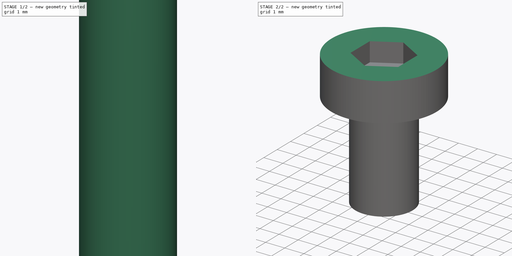
[diagram: build sequence overview — one tinted view per stage of 2, left to right]
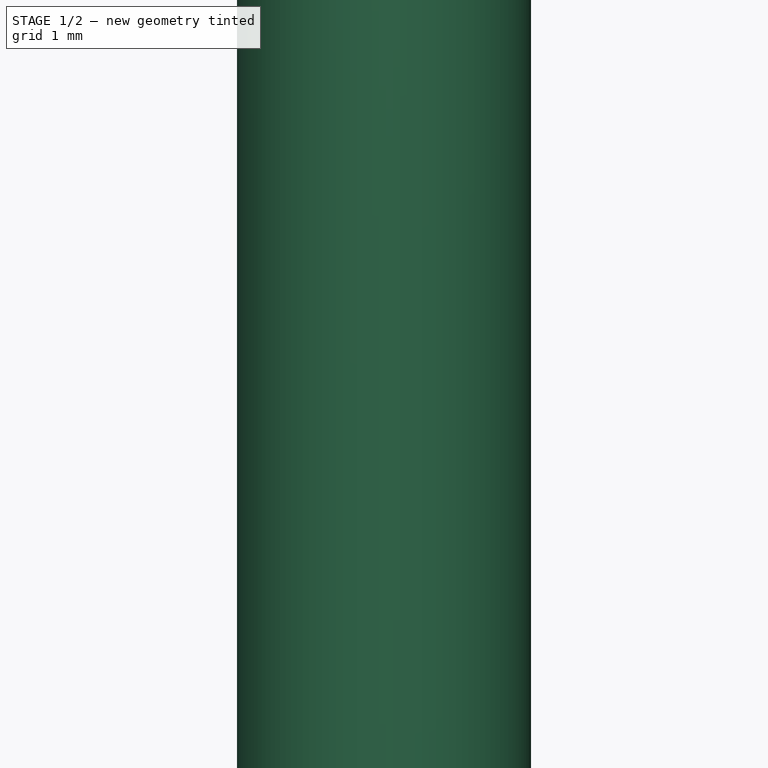
[diagram: stage 1 of 2 — iso view after this stage's code; geometry added in this stage tinted green]
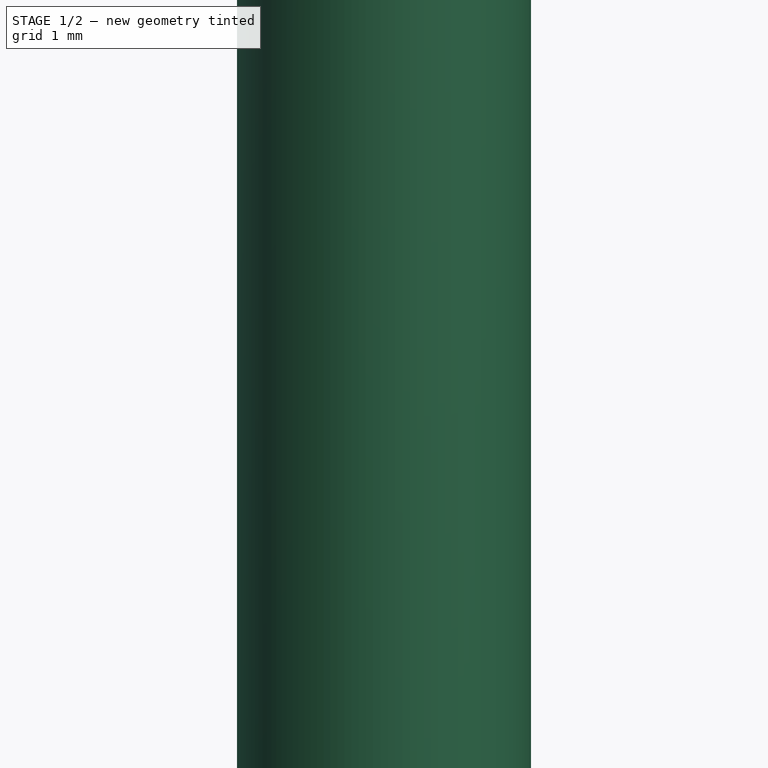
[diagram: stage 1 of 2 — front view after this stage's code; geometry added in this stage tinted green]
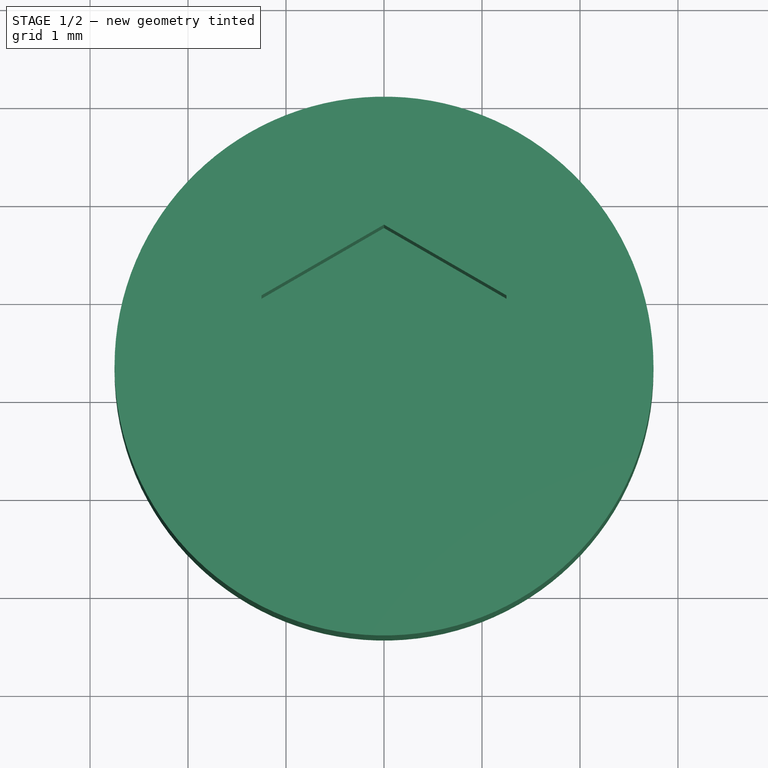
[diagram: stage 1 of 2 — top view after this stage's code; geometry added in this stage tinted green]
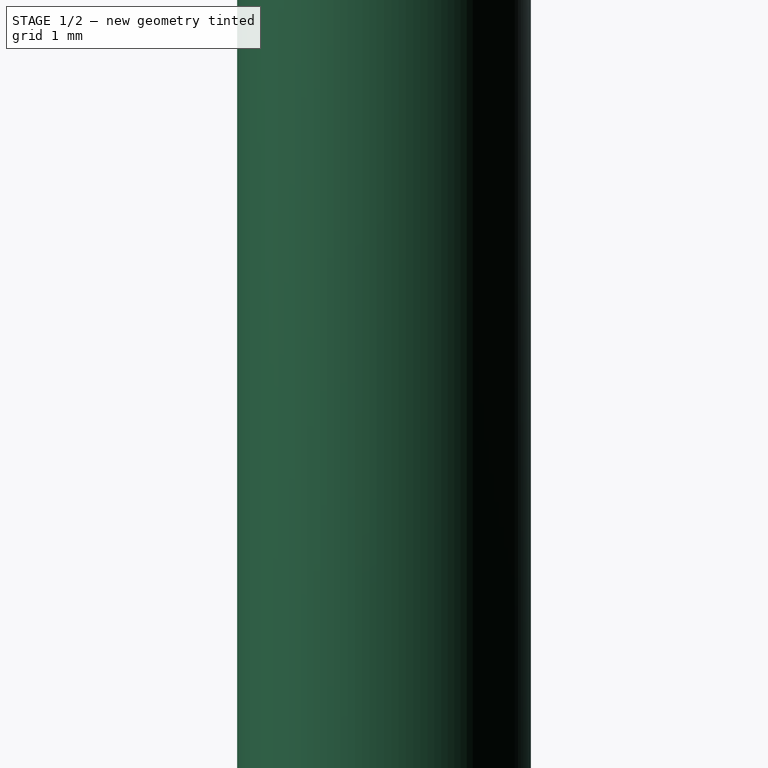
[diagram: stage 1 of 2 — right view after this stage's code; geometry added in this stage tinted green]
FCSTD DOCUMENT  (FreeCAD 0.17R11580 (Git))
Label: screw_M3_thinhead
License: All rights reserved
LicenseURL: http://en.wikipedia.org/wiki/All_rights_reserved
objects: Part::Feature×2, Sketcher::SketchObject×2, PartDesign::Pocket×2, PartDesign::ShapeBinder×1, PartDesign::Body×1
note: 10 computed .brp shape members not serialized (recipe doc carries the construction recipe); baked Part::Feature solids carry a one-line shape summary decoded from their .brp

FEATURE [Part::Feature] BOLTS_part  label="Hex socket head cap screw DIN 912 M3 5.0"
  Placement = pos=(0,0,3) rot=(0,1,0;3.14159rad)
  shape: bbox 5.5 x 5.5 x 21 mm, 12 faces (baked)
FEATURE [PartDesign::ShapeBinder] CopyBOLTS_part
  Placement = pos=(0,0,3) rot=(0,1,0;3.14159rad)
FEATURE [Sketcher::SketchObject] Sketch
  ExternalGeometry = -> [CopyBOLTS_part]
  MapMode = 5
  Placement = pos=(0,0,3) rot=(0,0,1;3.14159rad)
  Support = -> [CopyBOLTS_part]
  sketch-geometry (7):
    g0: LineSegment StartX=1.25 StartY=-0.721688 StartZ=0 EndX=1.25 EndY=0.721688 EndZ=0
    g1: LineSegment StartX=1.25 StartY=0.721688 StartZ=0 EndX=0 EndY=1.44338 EndZ=0
    g2: LineSegment StartX=0 StartY=1.44338 StartZ=0 EndX=-1.25 EndY=0.721688 EndZ=0
    g3: LineSegment StartX=-1.25 StartY=0.721688 StartZ=0 EndX=-1.25 EndY=-0.721688 EndZ=0
    g4: LineSegment StartX=-1.25 StartY=-0.721688 StartZ=0 EndX=0 EndY=-1.44338 EndZ=0
    g5: LineSegment StartX=0 StartY=-1.44338 StartZ=0 EndX=1.25 EndY=-0.721688 EndZ=0
    g6: Circle [constr] CenterX=0 CenterY=0 CenterZ=0 NormalX=0 NormalY=0 NormalZ=1 Radius=1.44338
  constraints (15):
    c: Coincident(g0,g1)
    c: Coincident(g1,g2)
    c: Coincident(g2,g3)
    c: Coincident(g3,g4)
    c: Coincident(g4,g5)
    c: Coincident(g5,g0)
    c: Equal(g0, g1-g5) x5
    c: PointOnObject(g0,g6)
    c: PointOnObject(g1,g6)
    c: PointOnObject(g2,g6)
    c: PointOnObject(g3,g6)
    c: PointOnObject(g4,g6)
    c: PointOnObject(g5,g6)
    c: Coincident(g6,g-1)
    c: Coincident(g5,g-9)
FEATURE [PartDesign::Pocket] Pocket
  BaseFeature = -> BOLTS_part
  Length = 2
  Placement = pos=(0,0,3) rot=(0,1,0;3.14159rad)
  Profile = -> Sketch
  Type = 0
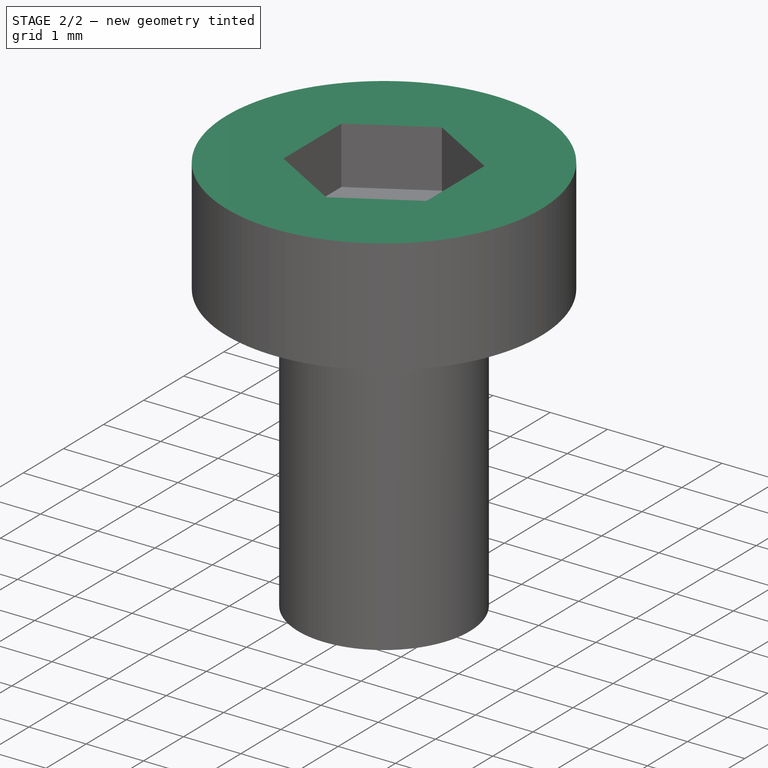
[diagram: stage 2 of 2 — iso view after this stage's code; geometry added in this stage tinted green]
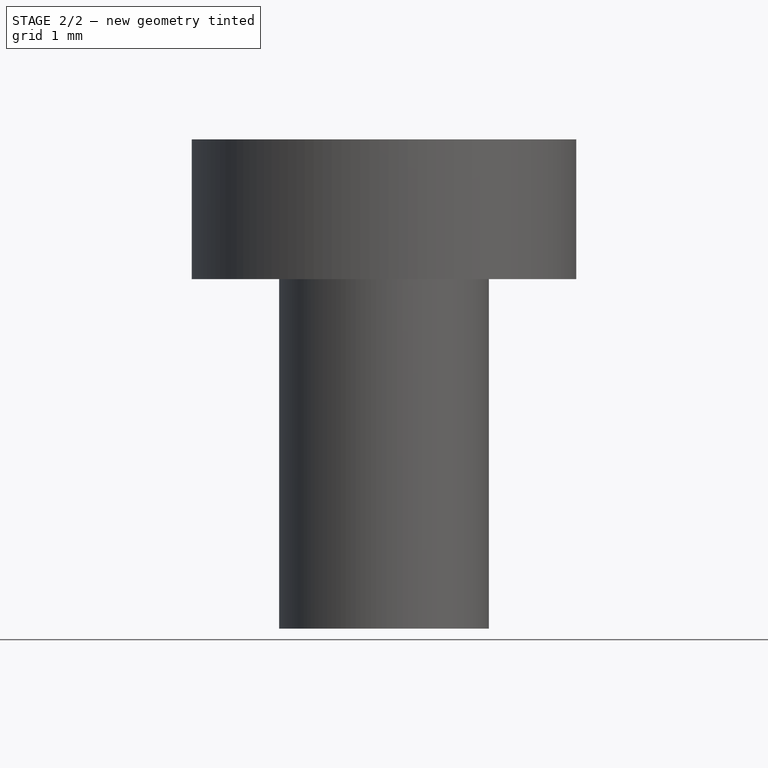
[diagram: stage 2 of 2 — front view after this stage's code; geometry added in this stage tinted green]
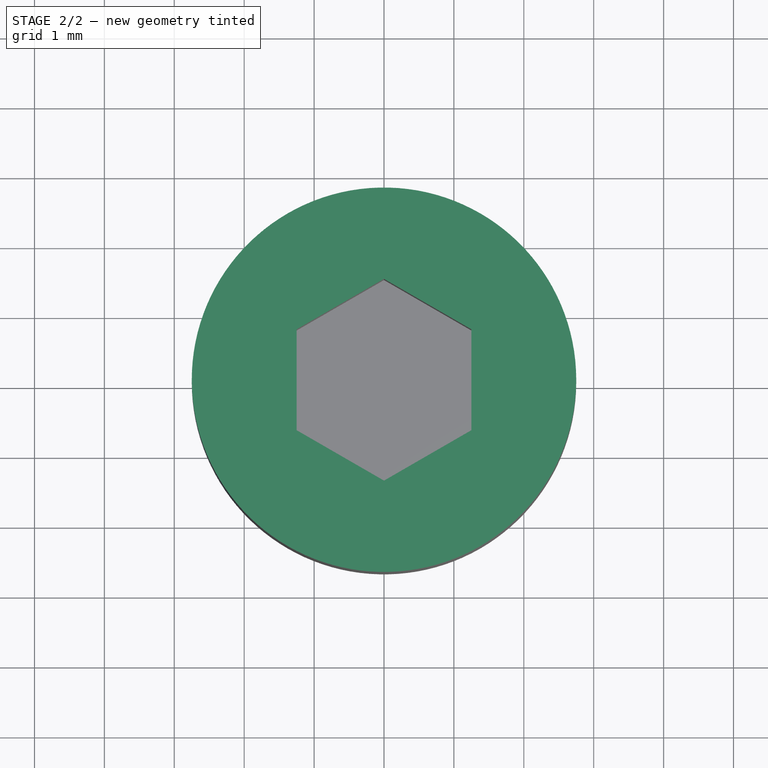
[diagram: stage 2 of 2 — top view after this stage's code; geometry added in this stage tinted green]
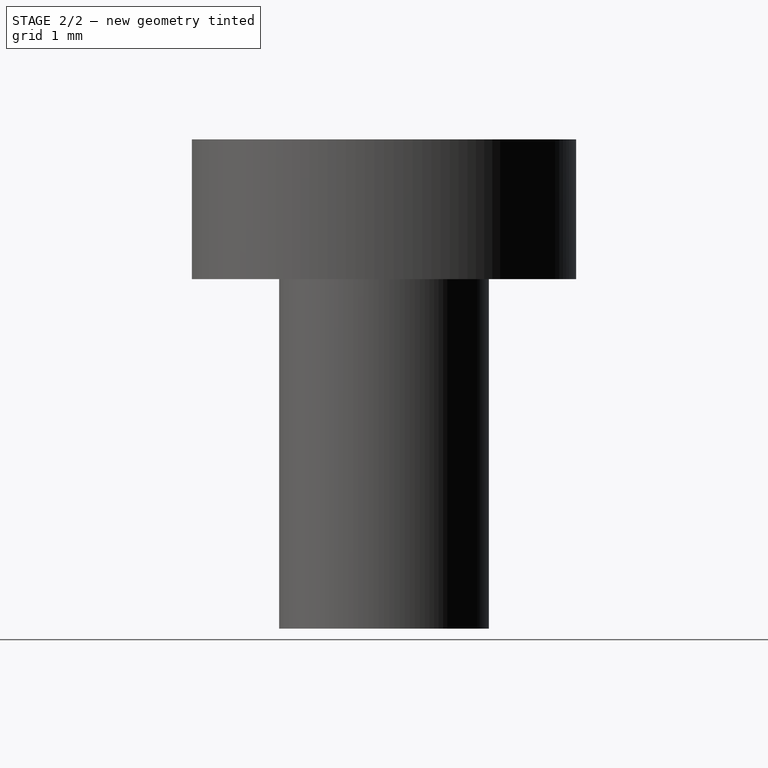
[diagram: stage 2 of 2 — right view after this stage's code; geometry added in this stage tinted green]
FEATURE [Sketcher::SketchObject] Sketch001
  ExternalGeometry = -> [Pocket]
  MapMode = 5
  Placement = pos=(0,0,0) rot=(0.57735,0.57735,0.57735;2.0944rad)
  Support = -> [YZ_Plane]
  sketch-geometry (13):
    g0: LineSegment [constr] StartX=-3 StartY=0 StartZ=0 EndX=3 EndY=0 EndZ=0
    g1: LineSegment [constr] StartX=3 StartY=0 StartZ=0 EndX=3 EndY=-5 EndZ=0
    g2: LineSegment StartX=3 StartY=-5 StartZ=0 EndX=-3 EndY=-5 EndZ=0
    g3: LineSegment [constr] StartX=-3 StartY=-5 StartZ=0 EndX=-3 EndY=0 EndZ=0
    g4: LineSegment [constr] StartX=-3 StartY=0 StartZ=0 EndX=-3 EndY=2 EndZ=0
    g5: LineSegment StartX=-3 StartY=2 StartZ=0 EndX=3 EndY=2 EndZ=0
    g6: LineSegment [constr] StartX=3 StartY=2 StartZ=0 EndX=3 EndY=0 EndZ=0
    g7: LineSegment StartX=-3 StartY=2 StartZ=0 EndX=-3 EndY=4 EndZ=0
    g8: LineSegment StartX=-3 StartY=4 StartZ=0 EndX=3 EndY=4 EndZ=0
    g9: LineSegment StartX=3 StartY=4 StartZ=0 EndX=3 EndY=2 EndZ=0
    g10: LineSegment StartX=-3 StartY=-5 StartZ=0 EndX=-3 EndY=-19 EndZ=0
    g11: LineSegment StartX=-3 StartY=-19 StartZ=0 EndX=3 EndY=-19 EndZ=0
    g12: LineSegment StartX=3 StartY=-19 StartZ=0 EndX=3 EndY=-5 EndZ=0
  constraints (35):
    c: Coincident(g0,g1)
    c: Coincident(g1,g2)
    c: Coincident(g2,g3)
    c: Coincident(g3,g0)
    c: Horizontal(g0)
    c: Horizontal(g2)
    c: Vertical(g1)
    c: Vertical(g3)
    c: Coincident(g0,g4)
    c: Vertical(g4)
    c: Coincident(g4,g5)
    c: Horizontal(g5)
    c: Coincident(g5,g6)
    c: Coincident(g6,g0)
    c: Vertical(g6)
    c: Symmetric(g0,g0,g-1)
    c: DistanceY(g6,g6) = 2
    c: DistanceY(g1,g1) = 5
    c: DistanceX(g2,g2) = 6
    c: Coincident(g4,g7)
    c: Vertical(g7)
    c: Coincident(g7,g8)
    c: Horizontal(g8)
    c: Coincident(g8,g9)
    c: Coincident(g9,g5)
    c: Vertical(g9)
    c: Coincident(g2,g10)
    c: Vertical(g10)
    c: Coincident(g10,g11)
    c: Horizontal(g11)
    c: Coincident(g11,g12)
    c: Coincident(g12,g1)
    c: Vertical(g12)
    c: DistanceY(g-3,g8) = 1
    c: DistanceY(g12,g12) = 14
FEATURE [PartDesign::Pocket] Pocket001
  BaseFeature = -> Pocket
  Length = 6
  Midplane = true
  Placement = pos=(0,0,3) rot=(0,1,0;3.14159rad)
  Profile = -> Sketch001
  Type = 0
FEATURE [PartDesign::Body] Body
  BaseFeature = -> BOLTS_part
  Group = -> [CopyBOLTS_part,Sketch,Pocket,Sketch001,Pocket001]
  Origin = -> Origin
  Tip = -> Pocket001
FEATURE [Part::Feature] Pocket001001001  label="screw_M3_thinhead_refined"
  shape: bbox 5.5 x 5.5 x 7 mm, 12 faces (baked)
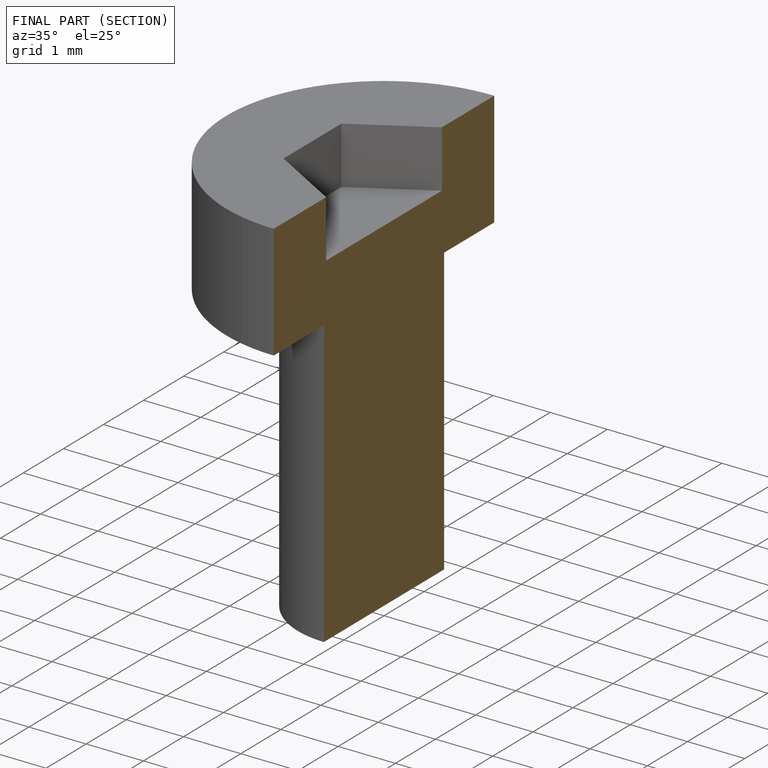
[diagram: finished part — half-section view (interior)]
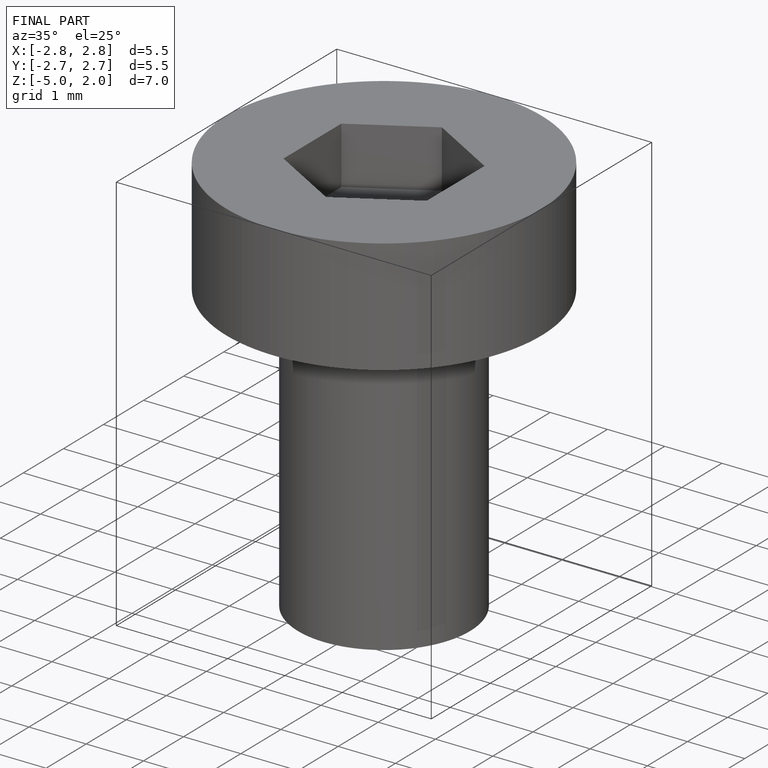
[diagram: finished part — iso view with bounding-box wireframe]
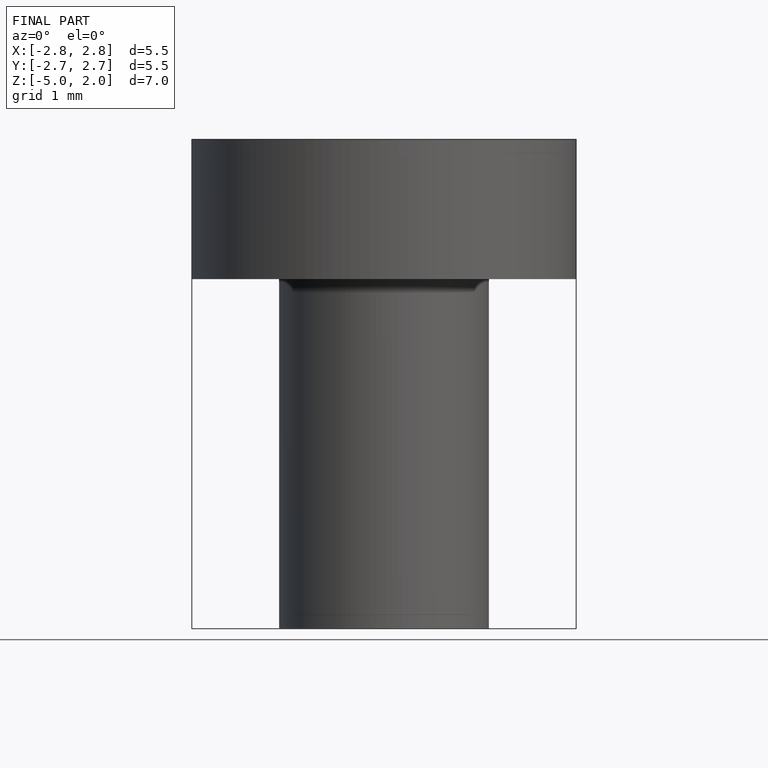
[diagram: finished part — front view with bounding-box wireframe]
